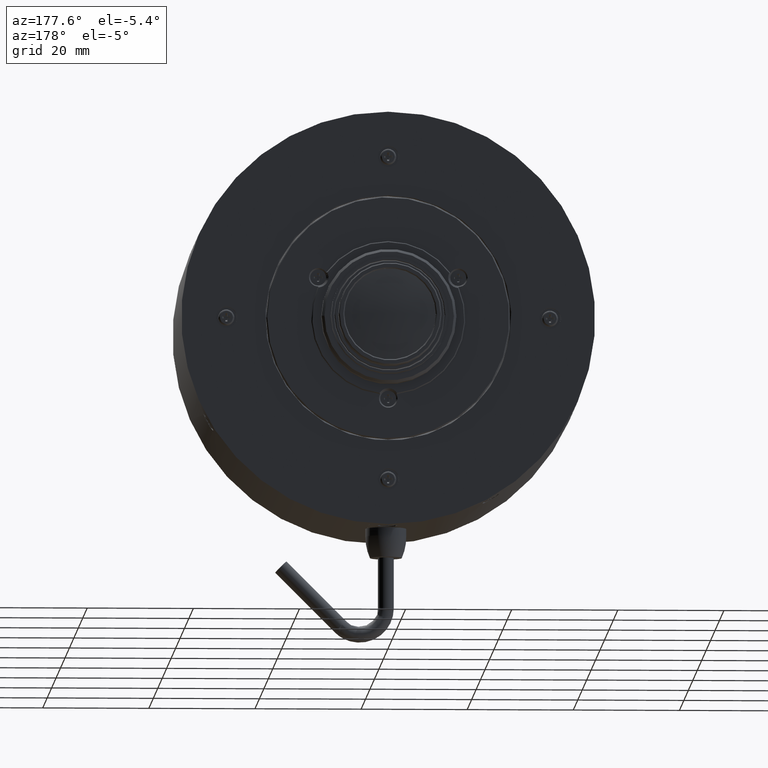
[diagram: clean part render]
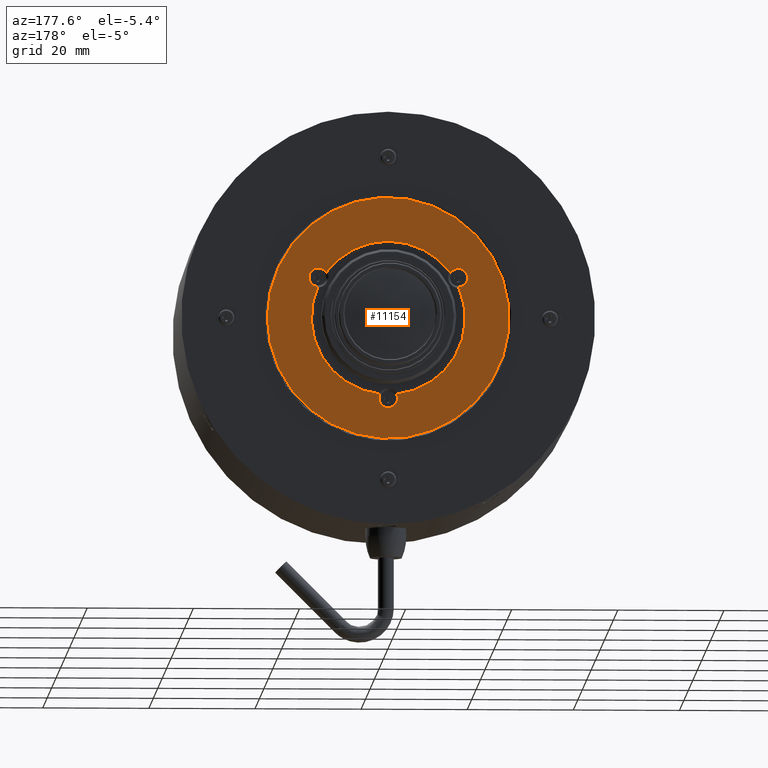
[diagram: same view with one face highlighted and labeled with its STEP entity id]
A machine part, auxiliary view. The second image highlights one B-rep face of the part: STEP entity #11154.
In plain terms, the highlighted planar face has unit normal (-0, -1, 0).
Its self-contained STEP definition (entity closure, byte-faithful):
#69 = DIRECTION ( 'NONE',  ( -0.000000000000000000, 1.000000000000000000, -0.000000000000000000 ) ) ;
#149 = EDGE_CURVE ( 'NONE', #10665, #11267, #10093, .T. ) ;
#570 = CARTESIAN_POINT ( 'NONE',  ( 0.000000000000000000, -17.67999999999298311, 0.000000000000000000 ) ) ;
#654 = PLANE ( 'NONE',  #4504 ) ;
#781 = CARTESIAN_POINT ( 'NONE',  ( -1.539587788219862974, -17.67999999998929184, -14.41803278683526379 ) ) ;
#889 = CARTESIAN_POINT ( 'NONE',  ( -13.20688740698830088, -17.67999999999300087, 7.624999999581730137 ) ) ;
#937 = VERTEX_POINT ( 'NONE', #5806 ) ;
#1070 = EDGE_CURVE ( 'NONE', #5361, #5185, #4112, .T. ) ;
#1271 = CARTESIAN_POINT ( 'NONE',  ( -1.508455196501575928E-17, -17.67999999999300087, 0.000000000000000000 ) ) ;
#1502 = FACE_OUTER_BOUND ( 'NONE', #3989, .T. ) ;
#1702 = ORIENTED_EDGE ( 'NONE', *, *, #7655, .F. ) ;
#1907 = CARTESIAN_POINT ( 'NONE',  ( -11.71658877189411641, -17.67999999999100069, 8.542338529364576161 ) ) ;
#2134 = AXIS2_PLACEMENT_3D ( 'NONE', #1271, #11651, #7752 ) ;
#2516 = EDGE_LOOP ( 'NONE', ( #7411, #7473, #1702, #10395, #4103, #6448 ) ) ;
#3081 = CIRCLE ( 'NONE', #6159, 14.49999999999999467 ) ;
#3198 = CARTESIAN_POINT ( 'NONE',  ( 11.71658877189455161, -17.67999999999136662, 8.542338529364593924 ) ) ;
#3508 = CIRCLE ( 'NONE', #2134, 22.80000000000000071 ) ;
#3542 = DIRECTION ( 'NONE',  ( 1.000000000000000000, 0.000000000000000000, 1.982541115402065307E-15 ) ) ;
#3816 = VERTEX_POINT ( 'NONE', #3198 ) ;
#3989 = EDGE_LOOP ( 'NONE', ( #7493 ) ) ;
#4103 = ORIENTED_EDGE ( 'NONE', *, *, #4573, .F. ) ;
#4112 = CIRCLE ( 'NONE', #11871, 1.749999999999999778 ) ;
#4254 = CARTESIAN_POINT ( 'NONE',  ( 0.000000000000000000, -17.67999999999299376, 0.000000000000000000 ) ) ;
#4504 = AXIS2_PLACEMENT_3D ( 'NONE', #8839, #9810, #11584 ) ;
#4573 = EDGE_CURVE ( 'NONE', #937, #10665, #3081, .T. ) ;
#4675 = VERTEX_POINT ( 'NONE', #5639 ) ;
#4847 = CIRCLE ( 'NONE', #11825, 1.749999999999999778 ) ;
#4878 = DIRECTION ( 'NONE',  ( 6.123031769111889989E-17, 1.000000000000000000, -0.000000000000000000 ) ) ;
#4909 = CIRCLE ( 'NONE', #5291, 14.49999999999998401 ) ;
#5185 = VERTEX_POINT ( 'NONE', #1907 ) ;
#5288 = CARTESIAN_POINT ( 'NONE',  ( -1.084202172485500292E-15, -17.67999999999300087, -15.24999999916350113 ) ) ;
#5291 = AXIS2_PLACEMENT_3D ( 'NONE', #570, #10534, #11452 ) ;
#5361 = VERTEX_POINT ( 'NONE', #5416 ) ;
#5416 = CARTESIAN_POINT ( 'NONE',  ( -13.25617656010365231, -17.67999999999137017, 5.875694257473841553 ) ) ;
#5567 = EDGE_CURVE ( 'NONE', #4675, #4675, #3508, .T. ) ;
#5639 = CARTESIAN_POINT ( 'NONE',  ( 22.80000000000000071, -17.67999999999300087, 0.000000000000000000 ) ) ;
#5661 = CARTESIAN_POINT ( 'NONE',  ( 13.20688740698830088, -17.67999999999300087, 7.624999999581739907 ) ) ;
#5806 = CARTESIAN_POINT ( 'NONE',  ( 13.25617656010364875, -17.67999999999137017, 5.875694257473853988 ) ) ;
#6122 = EDGE_CURVE ( 'NONE', #5185, #3816, #4909, .T. ) ;
#6159 = AXIS2_PLACEMENT_3D ( 'NONE', #4254, #7021, #7927 ) ;
#6448 = ORIENTED_EDGE ( 'NONE', *, *, #8720, .F. ) ;
#6620 = DIRECTION ( 'NONE',  ( 1.000000000000000000, 0.000000000000000000, 0.000000000000000000 ) ) ;
#7021 = DIRECTION ( 'NONE',  ( -0.000000000000000000, 1.000000000000000000, -0.000000000000000000 ) ) ;
#7121 = AXIS2_PLACEMENT_3D ( 'NONE', #11358, #69, #11243 ) ;
#7186 = CARTESIAN_POINT ( 'NONE',  ( 1.539587788217209541, -17.67999999999401339, -14.41803278684028555 ) ) ;
#7411 = ORIENTED_EDGE ( 'NONE', *, *, #6122, .F. ) ;
#7473 = ORIENTED_EDGE ( 'NONE', *, *, #1070, .F. ) ;
#7493 = ORIENTED_EDGE ( 'NONE', *, *, #5567, .F. ) ;
#7655 = EDGE_CURVE ( 'NONE', #11267, #5361, #10429, .T. ) ;
#7752 = DIRECTION ( 'NONE',  ( 1.000000000000000000, 0.000000000000000000, 0.000000000000000000 ) ) ;
#7927 = DIRECTION ( 'NONE',  ( 8.881784197001252323E-16, 0.000000000000000000, -1.000000000000000000 ) ) ;
#8720 = EDGE_CURVE ( 'NONE', #3816, #937, #4847, .T. ) ;
#8839 = CARTESIAN_POINT ( 'NONE',  ( -1.082552016778550258E-15, -17.67999999999300087, 17.94999999925489931 ) ) ;
#8904 = FACE_BOUND ( 'NONE', #2516, .T. ) ;
#9810 = DIRECTION ( 'NONE',  ( -6.123031769111889989E-17, -1.000000000000000000, 0.000000000000000000 ) ) ;
#9984 = DIRECTION ( 'NONE',  ( 6.123031769111889989E-17, 1.000000000000000000, -0.000000000000000000 ) ) ;
#10093 = CIRCLE ( 'NONE', #11053, 1.750000000000000000 ) ;
#10215 = DIRECTION ( 'NONE',  ( 1.000000000000000000, 0.000000000000000000, 0.000000000000000000 ) ) ;
#10395 = ORIENTED_EDGE ( 'NONE', *, *, #149, .F. ) ;
#10429 = CIRCLE ( 'NONE', #7121, 14.49999999999999467 ) ;
#10534 = DIRECTION ( 'NONE',  ( -0.000000000000000000, 1.000000000000000000, -0.000000000000000000 ) ) ;
#10665 = VERTEX_POINT ( 'NONE', #7186 ) ;
#11053 = AXIS2_PLACEMENT_3D ( 'NONE', #5288, #11854, #3542 ) ;
#11154 = ADVANCED_FACE ( 'NONE', ( #1502, #8904 ), #654, .F. ) ;
#11243 = DIRECTION ( 'NONE',  ( 0.000000000000000000, 0.000000000000000000, -1.000000000000000000 ) ) ;
#11267 = VERTEX_POINT ( 'NONE', #781 ) ;
#11358 = CARTESIAN_POINT ( 'NONE',  ( 0.000000000000000000, -17.67999999999299376, 0.000000000000000000 ) ) ;
#11452 = DIRECTION ( 'NONE',  ( 0.000000000000000000, 0.000000000000000000, -1.000000000000000000 ) ) ;
#11584 = DIRECTION ( 'NONE',  ( 1.000000000000000000, -6.123031769111889989E-17, 0.000000000000000000 ) ) ;
#11651 = DIRECTION ( 'NONE',  ( 7.542275982507858379E-17, -1.000000000000000000, 0.000000000000000000 ) ) ;
#11825 = AXIS2_PLACEMENT_3D ( 'NONE', #5661, #4878, #6620 ) ;
#11854 = DIRECTION ( 'NONE',  ( 6.123031769111889989E-17, 1.000000000000000000, -0.000000000000000000 ) ) ;
#11871 = AXIS2_PLACEMENT_3D ( 'NONE', #889, #9984, #10215 ) ;